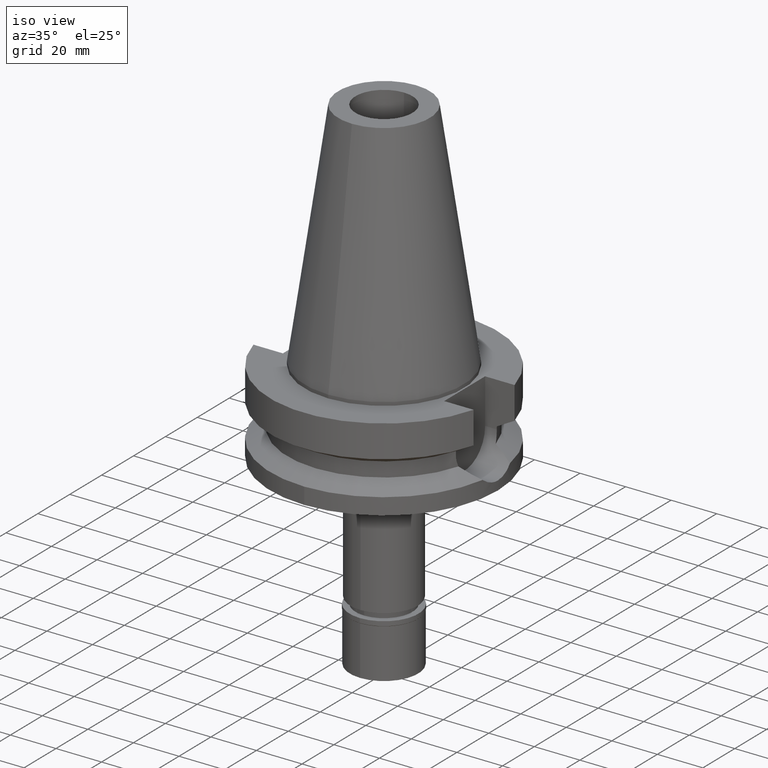
[diagram: clean part render]
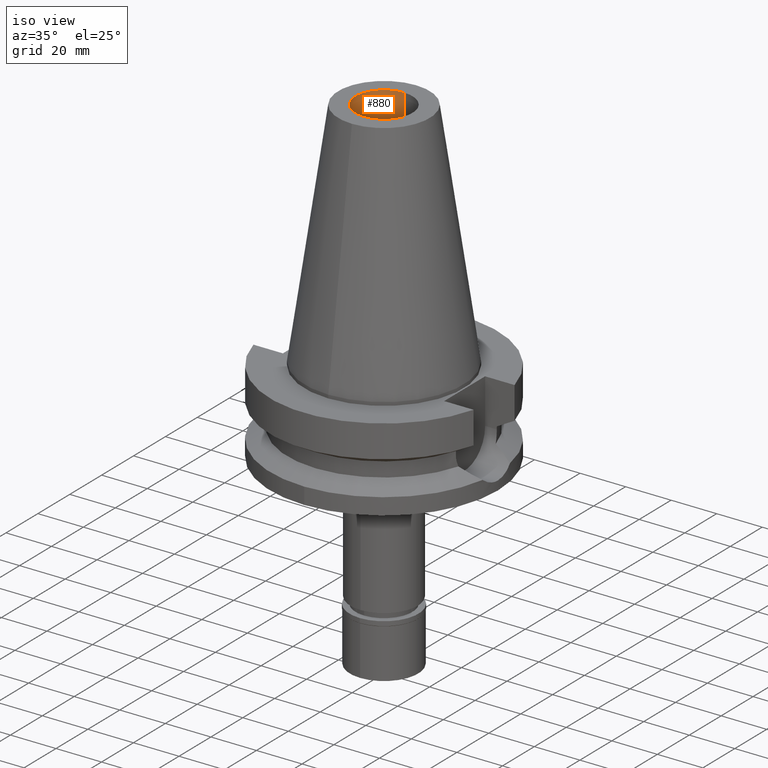
[diagram: same view with one face highlighted and labeled with its STEP entity id]
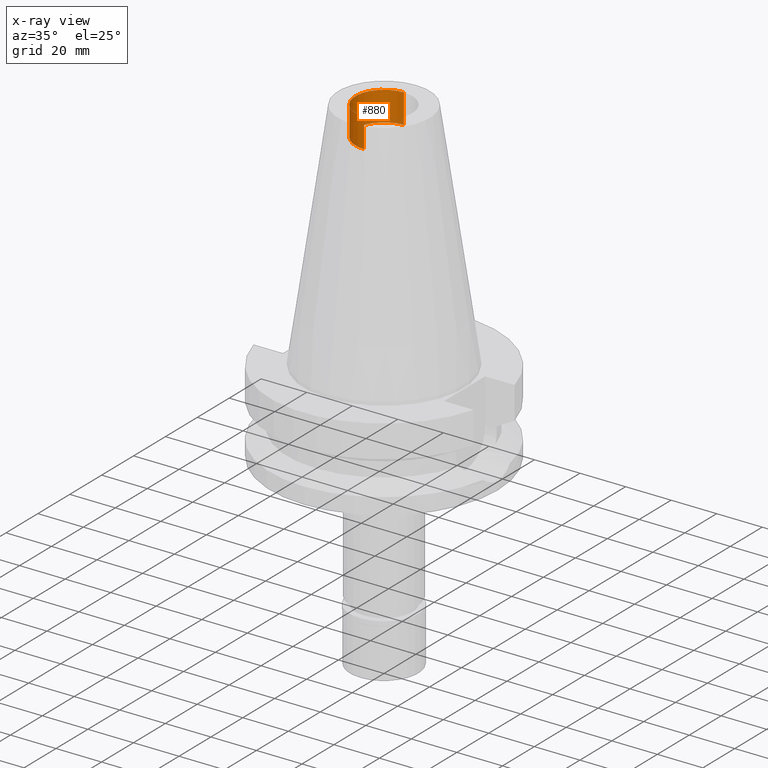
[diagram: x-ray of the same camera — body ghosted, the highlighted face saturated]
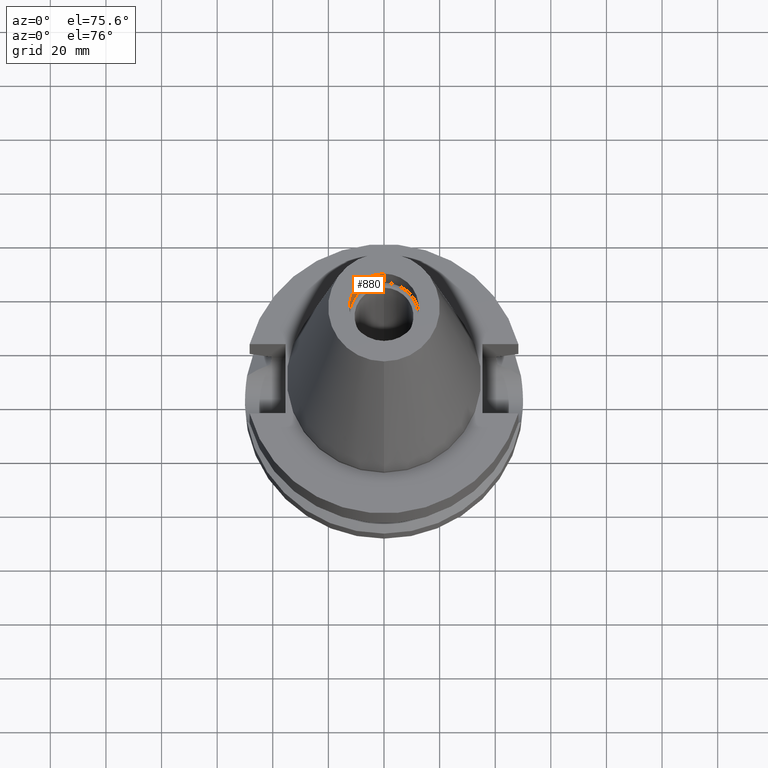
[diagram: same view with one face highlighted and labeled with its STEP entity id]
A machine part, iso view. The second image highlights one B-rep face of the part: STEP entity #880.
The next image is the same camera in x-ray: the body ghosted, the highlighted face saturated — about 2% of this face is hidden behind the body in this view.
A second angle (auxiliary view) of the same face is appended — the face is thin or edge-on in the first view.
In plain terms, the highlighted cylindrical surface (edge-blend (fillet) strip) has radius 12.5 mm, axis along (0, 0, -1).
Its self-contained STEP definition (entity closure, byte-faithful):
#32 = CIRCLE ( 'NONE', #2283, 12.50000000000000000 ) ;
#228 = EDGE_LOOP ( 'NONE', ( #2981, #2544, #2847, #1693 ) ) ;
#246 = DIRECTION ( 'NONE',  ( 0.0000000000000000000, 1.000000000000000000, 0.0000000000000000000 ) ) ;
#251 = DIRECTION ( 'NONE',  ( 0.0000000000000000000, 0.0000000000000000000, -1.000000000000000000 ) ) ;
#365 = CARTESIAN_POINT ( 'NONE',  ( 0.0000000000000000000, -12.50000000000000000, 88.79999999999999716 ) ) ;
#398 = CARTESIAN_POINT ( 'NONE',  ( 0.0000000000000000000, 2.601027336708999694E-14, 88.79999999999999716 ) ) ;
#476 = EDGE_CURVE ( 'NONE', #601, #2257, #2757, .T. ) ;
#535 = DIRECTION ( 'NONE',  ( 0.0000000000000000000, 0.0000000000000000000, 1.000000000000000000 ) ) ;
#601 = VERTEX_POINT ( 'NONE', #2343 ) ;
#639 = VECTOR ( 'NONE', #2377, 1000.000000000000000 ) ;
#654 = CARTESIAN_POINT ( 'NONE',  ( 0.0000000000000000000, -12.50000000000000000, 101.7999999999999972 ) ) ;
#703 = EDGE_CURVE ( 'NONE', #601, #2028, #946, .T. ) ;
#848 = AXIS2_PLACEMENT_3D ( 'NONE', #1690, #251, #2653 ) ;
#880 = ADVANCED_FACE ( 'NONE', ( #2423 ), #1188, .F. ) ;
#926 = DIRECTION ( 'NONE',  ( 0.0000000000000000000, -1.000000000000000000, 0.0000000000000000000 ) ) ;
#946 = CIRCLE ( 'NONE', #1512, 12.50000000000000000 ) ;
#1032 = CARTESIAN_POINT ( 'NONE',  ( 0.0000000000000000000, 12.50000000000000000, 88.79999999999999716 ) ) ;
#1188 = CYLINDRICAL_SURFACE ( 'NONE', #848, 12.50000000000000000 ) ;
#1388 = DIRECTION ( 'NONE',  ( 0.0000000000000000000, 0.0000000000000000000, -1.000000000000000000 ) ) ;
#1512 = AXIS2_PLACEMENT_3D ( 'NONE', #398, #1388, #926 ) ;
#1545 = CARTESIAN_POINT ( 'NONE',  ( 0.0000000000000000000, 12.50000000000000000, 101.7999999999999972 ) ) ;
#1690 = CARTESIAN_POINT ( 'NONE',  ( 0.0000000000000000000, 2.601027336708999694E-14, 112.3900000000000006 ) ) ;
#1693 = ORIENTED_EDGE ( 'NONE', *, *, #2583, .T. ) ;
#1782 = VECTOR ( 'NONE', #2974, 1000.000000000000000 ) ;
#2028 = VERTEX_POINT ( 'NONE', #2999 ) ;
#2051 = LINE ( 'NONE', #1032, #1782 ) ;
#2257 = VERTEX_POINT ( 'NONE', #654 ) ;
#2283 = AXIS2_PLACEMENT_3D ( 'NONE', #2941, #535, #246 ) ;
#2343 = CARTESIAN_POINT ( 'NONE',  ( 0.0000000000000000000, -12.50000000000000000, 88.79999999999999716 ) ) ;
#2377 = DIRECTION ( 'NONE',  ( 0.0000000000000000000, 0.0000000000000000000, 1.000000000000000000 ) ) ;
#2422 = EDGE_CURVE ( 'NONE', #3108, #2257, #32, .T. ) ;
#2423 = FACE_OUTER_BOUND ( 'NONE', #228, .T. ) ;
#2544 = ORIENTED_EDGE ( 'NONE', *, *, #476, .F. ) ;
#2583 = EDGE_CURVE ( 'NONE', #2028, #3108, #2051, .T. ) ;
#2653 = DIRECTION ( 'NONE',  ( 0.0000000000000000000, -1.000000000000000000, 0.0000000000000000000 ) ) ;
#2757 = LINE ( 'NONE', #365, #639 ) ;
#2847 = ORIENTED_EDGE ( 'NONE', *, *, #703, .T. ) ;
#2941 = CARTESIAN_POINT ( 'NONE',  ( 0.0000000000000000000, 2.601027336708999694E-14, 101.7999999999999972 ) ) ;
#2974 = DIRECTION ( 'NONE',  ( 0.0000000000000000000, 0.0000000000000000000, 1.000000000000000000 ) ) ;
#2981 = ORIENTED_EDGE ( 'NONE', *, *, #2422, .T. ) ;
#2999 = CARTESIAN_POINT ( 'NONE',  ( 0.0000000000000000000, 12.50000000000000000, 88.79999999999999716 ) ) ;
#3108 = VERTEX_POINT ( 'NONE', #1545 ) ;